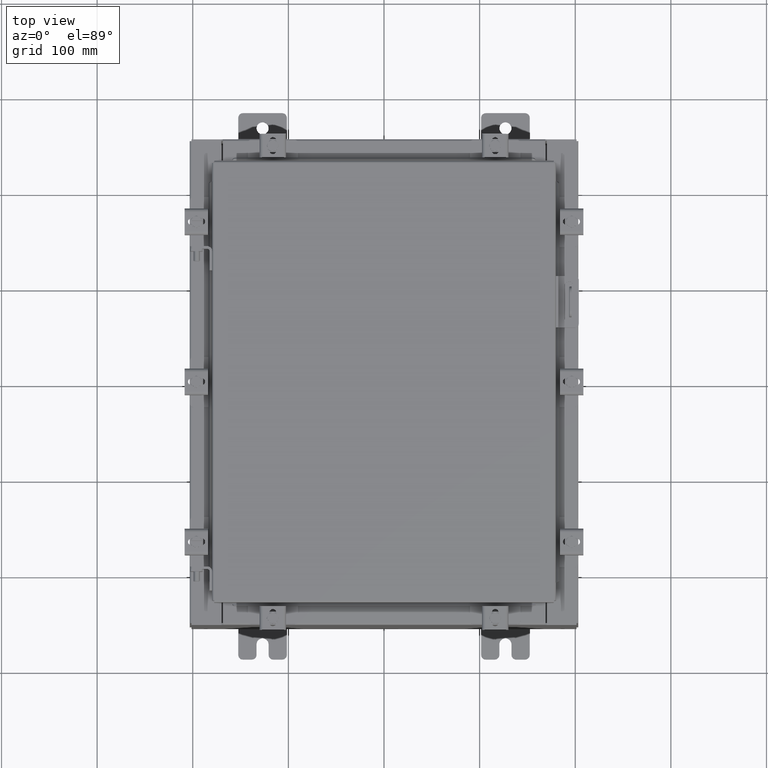
[diagram: clean part render]
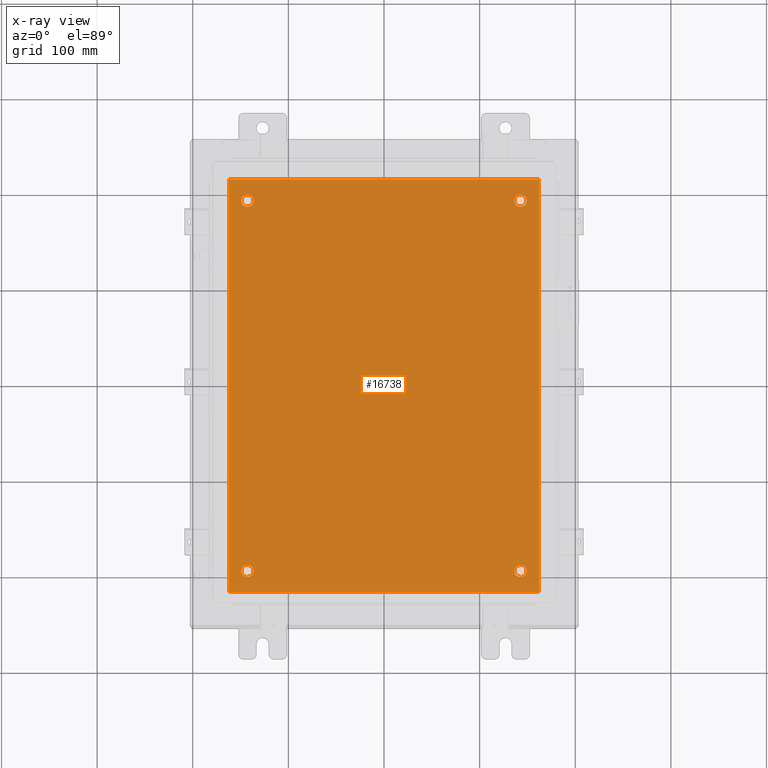
[diagram: x-ray — body ghosted, one internal face saturated and labeled with its STEP entity id]
A machine part, top view, then the same camera in x-ray: the body is ghosted and one INTERNAL B-rep face — a face not visible from any outside direction — is saturated and labeled: STEP entity #16738.
In plain terms, the highlighted planar face has unit normal (0, 0, -1).
Its self-contained STEP definition (entity closure, byte-faithful):
#28 = DIRECTION ( 'NONE',  ( 0.0000000000000000000, 0.0000000000000000000, -1.000000000000000000 ) ) ;
#551 = CARTESIAN_POINT ( 'NONE',  ( 6.383000000000000900, 8.500000000000000000, -0.1039999999999999800 ) ) ;
#1037 = AXIS2_PLACEMENT_3D ( 'NONE', #7589, #19828, #9336 ) ;
#1095 = DIRECTION ( 'NONE',  ( -0.0000000000000000000, -0.0000000000000000000, 1.000000000000000000 ) ) ;
#1126 = DIRECTION ( 'NONE',  ( -1.000000000000000000, 0.0000000000000000000, 0.0000000000000000000 ) ) ;
#1223 = AXIS2_PLACEMENT_3D ( 'NONE', #9286, #21528, #11012 ) ;
#1503 = ORIENTED_EDGE ( 'NONE', *, *, #8847, .F. ) ;
#1537 = CARTESIAN_POINT ( 'NONE',  ( -6.382999999999998200, 8.500000000000000000, -0.1039999999999998100 ) ) ;
#1924 = CIRCLE ( 'NONE', #1037, 0.2499999999999987000 ) ;
#1996 = ORIENTED_EDGE ( 'NONE', *, *, #2213, .T. ) ;
#2213 = EDGE_CURVE ( 'NONE', #18857, #16715, #14642, .T. ) ;
#2313 = FACE_BOUND ( 'NONE', #3883, .T. ) ;
#2360 = VECTOR ( 'NONE', #20774, 39.37007874015748100 ) ;
#2433 = VERTEX_POINT ( 'NONE', #11017 ) ;
#2703 = CIRCLE ( 'NONE', #1223, 0.2499999999999987000 ) ;
#3839 = EDGE_CURVE ( 'NONE', #13854, #9160, #16817, .T. ) ;
#3883 = EDGE_LOOP ( 'NONE', ( #14129, #20799 ) ) ;
#4229 = ORIENTED_EDGE ( 'NONE', *, *, #11505, .T. ) ;
#4452 = CARTESIAN_POINT ( 'NONE',  ( -5.625000000000000000, 7.625000000000001800, -0.1039999999999999800 ) ) ;
#4508 = CARTESIAN_POINT ( 'NONE',  ( -5.375000000000000900, 7.625000000000001800, -0.1039999999999999800 ) ) ;
#4622 = DIRECTION ( 'NONE',  ( -0.0000000000000000000, -0.0000000000000000000, 1.000000000000000000 ) ) ;
#4628 = CIRCLE ( 'NONE', #15833, 0.2499999999999987000 ) ;
#4746 = ORIENTED_EDGE ( 'NONE', *, *, #3839, .F. ) ;
#5135 = AXIS2_PLACEMENT_3D ( 'NONE', #22514, #28, #12064 ) ;
#6128 = ORIENTED_EDGE ( 'NONE', *, *, #9333, .T. ) ;
#6168 = DIRECTION ( 'NONE',  ( -1.000000000000000000, 0.0000000000000000000, 0.0000000000000000000 ) ) ;
#6291 = CARTESIAN_POINT ( 'NONE',  ( -5.625000000000000000, -7.625000000000001800, -0.1039999999999999800 ) ) ;
#6778 = EDGE_LOOP ( 'NONE', ( #18783, #6128 ) ) ;
#6801 = VERTEX_POINT ( 'NONE', #4508 ) ;
#6857 = PLANE ( 'NONE',  #5135 ) ;
#6992 = VERTEX_POINT ( 'NONE', #1537 ) ;
#7002 = EDGE_LOOP ( 'NONE', ( #11110, #1503, #20119, #4746 ) ) ;
#7114 = DIRECTION ( 'NONE',  ( -0.0000000000000000000, -0.0000000000000000000, 1.000000000000000000 ) ) ;
#7532 = VECTOR ( 'NONE', #13501, 39.37007874015748100 ) ;
#7589 = CARTESIAN_POINT ( 'NONE',  ( 5.625000000000004400, -7.625000000000000900, -0.1039999999999999800 ) ) ;
#7627 = VERTEX_POINT ( 'NONE', #22165 ) ;
#7630 = AXIS2_PLACEMENT_3D ( 'NONE', #14983, #4622, #16766 ) ;
#8014 = DIRECTION ( 'NONE',  ( -1.000000000000000000, 0.0000000000000000000, 0.0000000000000000000 ) ) ;
#8054 = CARTESIAN_POINT ( 'NONE',  ( -6.499999999999998200, -8.499999999999998200, -0.1039999999999999800 ) ) ;
#8247 = EDGE_CURVE ( 'NONE', #7627, #13854, #20312, .T. ) ;
#8278 = CARTESIAN_POINT ( 'NONE',  ( 6.383000000000002700, -8.499999999999998200, -0.1039999999999998100 ) ) ;
#8609 = CARTESIAN_POINT ( 'NONE',  ( -6.382999999999998200, 8.500000000000000000, -0.1039999999999998100 ) ) ;
#8620 = VERTEX_POINT ( 'NONE', #18379 ) ;
#8847 = EDGE_CURVE ( 'NONE', #6992, #7627, #19197, .T. ) ;
#9136 = ORIENTED_EDGE ( 'NONE', *, *, #20483, .T. ) ;
#9160 = VERTEX_POINT ( 'NONE', #551 ) ;
#9286 = CARTESIAN_POINT ( 'NONE',  ( 5.625000000000004400, -7.625000000000000900, -0.1039999999999999800 ) ) ;
#9333 = EDGE_CURVE ( 'NONE', #22298, #6801, #12570, .T. ) ;
#9336 = DIRECTION ( 'NONE',  ( -1.000000000000000000, 0.0000000000000000000, 0.0000000000000000000 ) ) ;
#9534 = AXIS2_PLACEMENT_3D ( 'NONE', #4452, #16584, #6168 ) ;
#9860 = VECTOR ( 'NONE', #19078, 39.37007874015748100 ) ;
#10072 = CARTESIAN_POINT ( 'NONE',  ( 6.383000000000000900, -8.499999999999998200, -0.1039999999999999800 ) ) ;
#10296 = AXIS2_PLACEMENT_3D ( 'NONE', #17554, #7114, #19326 ) ;
#10495 = VERTEX_POINT ( 'NONE', #15430 ) ;
#11012 = DIRECTION ( 'NONE',  ( -1.000000000000000000, 0.0000000000000000000, 0.0000000000000000000 ) ) ;
#11017 = CARTESIAN_POINT ( 'NONE',  ( 5.375000000000006200, -7.625000000000000900, -0.1039999999999999800 ) ) ;
#11110 = ORIENTED_EDGE ( 'NONE', *, *, #8247, .F. ) ;
#11346 = CARTESIAN_POINT ( 'NONE',  ( -5.375000000000000900, -7.625000000000001800, -0.1039999999999999800 ) ) ;
#11392 = CARTESIAN_POINT ( 'NONE',  ( -5.625000000000000000, 7.625000000000001800, -0.1039999999999999800 ) ) ;
#11422 = DIRECTION ( 'NONE',  ( -0.0000000000000000000, -0.0000000000000000000, 1.000000000000000000 ) ) ;
#11443 = FACE_BOUND ( 'NONE', #13428, .T. ) ;
#11482 = LINE ( 'NONE', #12014, #2360 ) ;
#11505 = EDGE_CURVE ( 'NONE', #16715, #18857, #4628, .T. ) ;
#11523 = EDGE_CURVE ( 'NONE', #10495, #14304, #13806, .T. ) ;
#12014 = CARTESIAN_POINT ( 'NONE',  ( -6.499999999999998200, 8.500000000000000000, -0.1039999999999999800 ) ) ;
#12064 = DIRECTION ( 'NONE',  ( -1.000000000000000000, 0.0000000000000000000, -0.0000000000000000000 ) ) ;
#12271 = CIRCLE ( 'NONE', #14847, 0.2499999999999998100 ) ;
#12570 = CIRCLE ( 'NONE', #9534, 0.2499999999999998100 ) ;
#12837 = CARTESIAN_POINT ( 'NONE',  ( -5.875000000000000000, 7.625000000000001800, -0.1039999999999999800 ) ) ;
#12988 = CIRCLE ( 'NONE', #7630, 0.2499999999999998100 ) ;
#13147 = DIRECTION ( 'NONE',  ( -1.000000000000000000, 0.0000000000000000000, 0.0000000000000000000 ) ) ;
#13428 = EDGE_LOOP ( 'NONE', ( #1996, #4229 ) ) ;
#13501 = DIRECTION ( 'NONE',  ( 0.0000000000000000000, 1.000000000000000000, 0.0000000000000000000 ) ) ;
#13669 = CARTESIAN_POINT ( 'NONE',  ( 5.874999999999999100, 7.625000000000002700, -0.1039999999999999800 ) ) ;
#13806 = CIRCLE ( 'NONE', #17041, 0.2499999999999998100 ) ;
#13854 = VERTEX_POINT ( 'NONE', #10072 ) ;
#14129 = ORIENTED_EDGE ( 'NONE', *, *, #21653, .T. ) ;
#14304 = VERTEX_POINT ( 'NONE', #11346 ) ;
#14642 = CIRCLE ( 'NONE', #10296, 0.2499999999999987000 ) ;
#14847 = AXIS2_PLACEMENT_3D ( 'NONE', #11392, #1095, #13147 ) ;
#14983 = CARTESIAN_POINT ( 'NONE',  ( -5.625000000000000000, -7.625000000000001800, -0.1039999999999999800 ) ) ;
#15430 = CARTESIAN_POINT ( 'NONE',  ( -5.875000000000000000, -7.625000000000001800, -0.1039999999999999800 ) ) ;
#15758 = EDGE_CURVE ( 'NONE', #9160, #6992, #11482, .T. ) ;
#15833 = AXIS2_PLACEMENT_3D ( 'NONE', #21935, #11422, #1126 ) ;
#16099 = FACE_BOUND ( 'NONE', #22058, .T. ) ;
#16497 = EDGE_CURVE ( 'NONE', #6801, #22298, #12271, .T. ) ;
#16584 = DIRECTION ( 'NONE',  ( -0.0000000000000000000, -0.0000000000000000000, 1.000000000000000000 ) ) ;
#16715 = VERTEX_POINT ( 'NONE', #17229 ) ;
#16738 = ADVANCED_FACE ( 'NONE', ( #16099, #2313, #11443, #20800, #20249 ), #6857, .T. ) ;
#16766 = DIRECTION ( 'NONE',  ( -1.000000000000000000, 0.0000000000000000000, 0.0000000000000000000 ) ) ;
#16817 = LINE ( 'NONE', #8278, #7532 ) ;
#17041 = AXIS2_PLACEMENT_3D ( 'NONE', #6291, #18477, #8014 ) ;
#17229 = CARTESIAN_POINT ( 'NONE',  ( 5.375000000000001800, 7.625000000000002700, -0.1039999999999999800 ) ) ;
#17554 = CARTESIAN_POINT ( 'NONE',  ( 5.625000000000000000, 7.625000000000002700, -0.1039999999999999800 ) ) ;
#18379 = CARTESIAN_POINT ( 'NONE',  ( 5.875000000000003600, -7.625000000000000900, -0.1039999999999999800 ) ) ;
#18477 = DIRECTION ( 'NONE',  ( -0.0000000000000000000, -0.0000000000000000000, 1.000000000000000000 ) ) ;
#18514 = DIRECTION ( 'NONE',  ( 1.000000000000000000, 0.0000000000000000000, 0.0000000000000000000 ) ) ;
#18676 = ORIENTED_EDGE ( 'NONE', *, *, #11523, .T. ) ;
#18783 = ORIENTED_EDGE ( 'NONE', *, *, #16497, .T. ) ;
#18857 = VERTEX_POINT ( 'NONE', #13669 ) ;
#19078 = DIRECTION ( 'NONE',  ( 0.0000000000000000000, -1.000000000000000000, 0.0000000000000000000 ) ) ;
#19197 = LINE ( 'NONE', #8609, #9860 ) ;
#19326 = DIRECTION ( 'NONE',  ( -1.000000000000000000, 0.0000000000000000000, 0.0000000000000000000 ) ) ;
#19767 = VECTOR ( 'NONE', #18514, 39.37007874015748100 ) ;
#19828 = DIRECTION ( 'NONE',  ( -0.0000000000000000000, -0.0000000000000000000, 1.000000000000000000 ) ) ;
#20119 = ORIENTED_EDGE ( 'NONE', *, *, #15758, .F. ) ;
#20249 = FACE_OUTER_BOUND ( 'NONE', #7002, .T. ) ;
#20312 = LINE ( 'NONE', #8054, #19767 ) ;
#20483 = EDGE_CURVE ( 'NONE', #14304, #10495, #12988, .T. ) ;
#20774 = DIRECTION ( 'NONE',  ( -1.000000000000000000, -0.0000000000000000000, -0.0000000000000000000 ) ) ;
#20799 = ORIENTED_EDGE ( 'NONE', *, *, #20848, .T. ) ;
#20800 = FACE_BOUND ( 'NONE', #6778, .T. ) ;
#20848 = EDGE_CURVE ( 'NONE', #2433, #8620, #1924, .T. ) ;
#21528 = DIRECTION ( 'NONE',  ( -0.0000000000000000000, -0.0000000000000000000, 1.000000000000000000 ) ) ;
#21653 = EDGE_CURVE ( 'NONE', #8620, #2433, #2703, .T. ) ;
#21935 = CARTESIAN_POINT ( 'NONE',  ( 5.625000000000000000, 7.625000000000002700, -0.1039999999999999800 ) ) ;
#22058 = EDGE_LOOP ( 'NONE', ( #9136, #18676 ) ) ;
#22165 = CARTESIAN_POINT ( 'NONE',  ( -6.382999999999998200, -8.499999999999998200, -0.1039999999999998100 ) ) ;
#22298 = VERTEX_POINT ( 'NONE', #12837 ) ;
#22514 = CARTESIAN_POINT ( 'NONE',  ( 0.0000000000000000000, 0.0000000000000000000, -0.1039999999999999800 ) ) ;